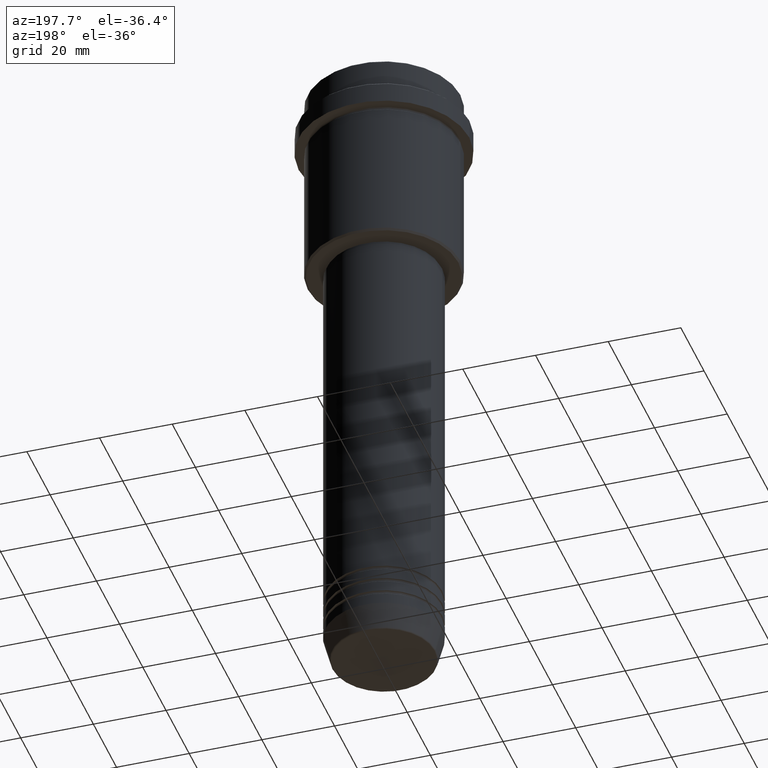
[diagram: clean part render]
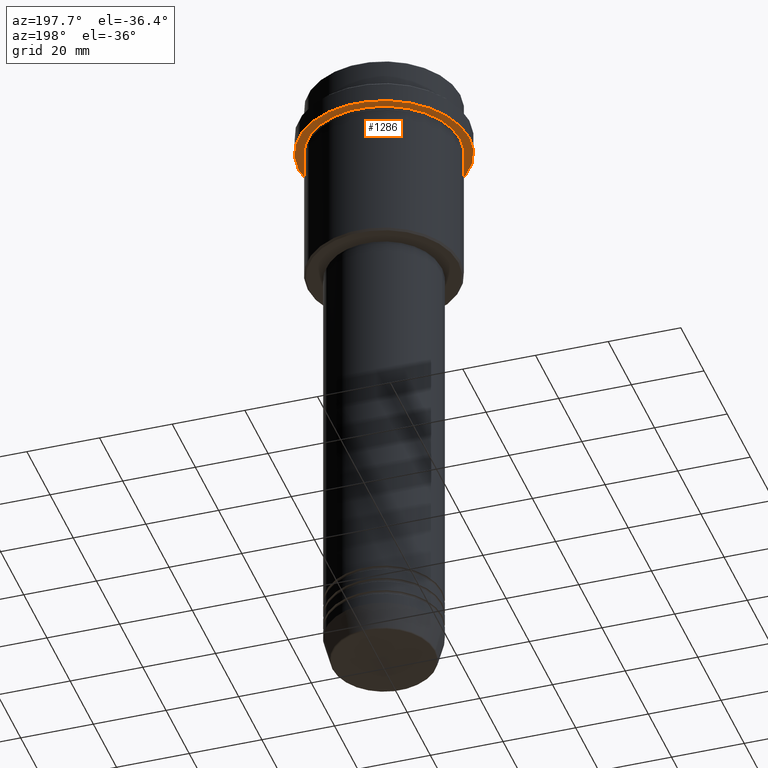
[diagram: same view with one face highlighted and labeled with its STEP entity id]
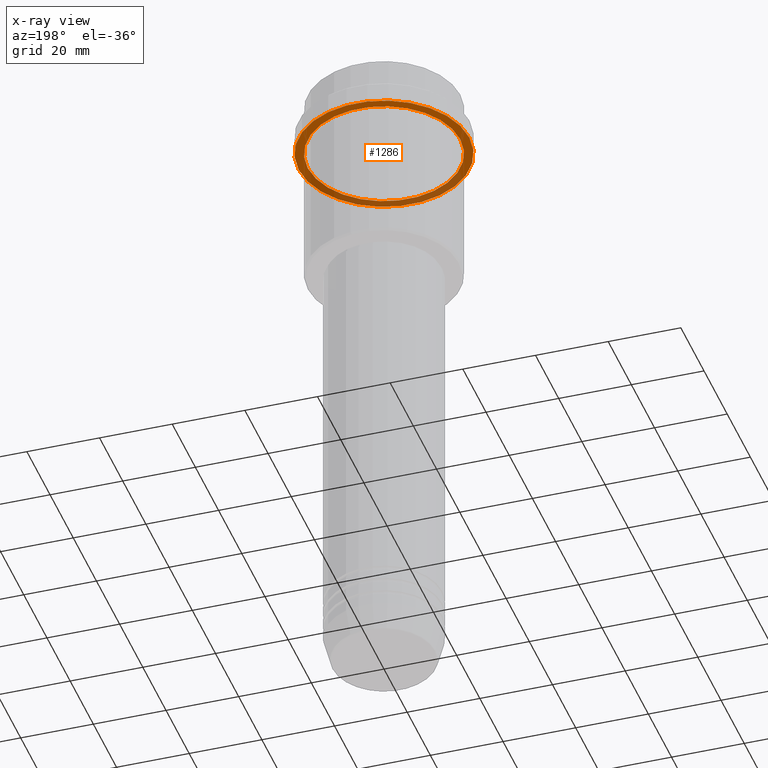
[diagram: x-ray of the same camera — body ghosted, the highlighted face saturated]
A machine part, auxiliary view. The second image highlights one B-rep face of the part: STEP entity #1286.
The next image is the same camera in x-ray: the body ghosted, the highlighted face saturated — about 36% of this face is hidden behind the body in this view.
In plain terms, the highlighted planar face has unit normal (0, 0, -1).
Its self-contained STEP definition (entity closure, byte-faithful):
#23 = DIRECTION ( 'NONE',  ( -1.000000000000000000, 0.000000000000000000, -0.000000000000000000 ) ) ;
#48 = CARTESIAN_POINT ( 'NONE',  ( 0.000000000000000000, 23.50000000000000355, -15.00000000000000178 ) ) ;
#77 = VERTEX_POINT ( 'NONE', #1100 ) ;
#110 = VERTEX_POINT ( 'NONE', #1204 ) ;
#118 = VERTEX_POINT ( 'NONE', #784 ) ;
#133 = EDGE_CURVE ( 'NONE', #110, #118, #428, .T. ) ;
#157 = ORIENTED_EDGE ( 'NONE', *, *, #133, .T. ) ;
#208 = EDGE_CURVE ( 'NONE', #1284, #77, #468, .T. ) ;
#210 = AXIS2_PLACEMENT_3D ( 'NONE', #612, #936, #708 ) ;
#212 = CARTESIAN_POINT ( 'NONE',  ( 0.000000000000000000, 0.000000000000000000, -15.00000000000000000 ) ) ;
#310 = EDGE_CURVE ( 'NONE', #118, #110, #424, .T. ) ;
#366 = DIRECTION ( 'NONE',  ( -0.000000000000000000, -0.000000000000000000, 1.000000000000000000 ) ) ;
#424 = CIRCLE ( 'NONE', #210, 20.99999999999999289 ) ;
#428 = CIRCLE ( 'NONE', #1210, 20.99999999999999289 ) ;
#468 = CIRCLE ( 'NONE', #1034, 23.50000000000000355 ) ;
#478 = FACE_OUTER_BOUND ( 'NONE', #639, .T. ) ;
#531 = DIRECTION ( 'NONE',  ( 1.000000000000000000, 0.000000000000000000, 0.000000000000000000 ) ) ;
#568 = DIRECTION ( 'NONE',  ( -1.000000000000000000, 0.000000000000000000, 0.000000000000000000 ) ) ;
#581 = DIRECTION ( 'NONE',  ( 0.000000000000000000, 0.000000000000000000, -1.000000000000000000 ) ) ;
#602 = CARTESIAN_POINT ( 'NONE',  ( -23.50000000000000711, 2.877919977996281109E-15, -15.00000000000000000 ) ) ;
#612 = CARTESIAN_POINT ( 'NONE',  ( 0.000000000000000000, 0.000000000000000000, -15.00000000000000178 ) ) ;
#639 = EDGE_LOOP ( 'NONE', ( #847, #1048 ) ) ;
#708 = DIRECTION ( 'NONE',  ( -1.000000000000000000, 0.000000000000000000, 0.000000000000000000 ) ) ;
#758 = DIRECTION ( 'NONE',  ( -0.000000000000000000, -0.000000000000000000, 1.000000000000000000 ) ) ;
#784 = CARTESIAN_POINT ( 'NONE',  ( -20.99999999999999289, 0.000000000000000000, -15.00000000000000178 ) ) ;
#800 = EDGE_LOOP ( 'NONE', ( #1176, #157 ) ) ;
#804 = CARTESIAN_POINT ( 'NONE',  ( 0.000000000000000000, 0.000000000000000000, -15.00000000000000178 ) ) ;
#841 = AXIS2_PLACEMENT_3D ( 'NONE', #212, #758, #1414 ) ;
#847 = ORIENTED_EDGE ( 'NONE', *, *, #1136, .F. ) ;
#862 = AXIS2_PLACEMENT_3D ( 'NONE', #48, #581, #23 ) ;
#884 = CIRCLE ( 'NONE', #841, 23.50000000000000355 ) ;
#918 = PLANE ( 'NONE',  #862 ) ;
#936 = DIRECTION ( 'NONE',  ( -0.000000000000000000, -0.000000000000000000, 1.000000000000000000 ) ) ;
#956 = DIRECTION ( 'NONE',  ( -0.000000000000000000, -0.000000000000000000, 1.000000000000000000 ) ) ;
#1030 = FACE_BOUND ( 'NONE', #800, .T. ) ;
#1034 = AXIS2_PLACEMENT_3D ( 'NONE', #1211, #956, #531 ) ;
#1048 = ORIENTED_EDGE ( 'NONE', *, *, #208, .F. ) ;
#1100 = CARTESIAN_POINT ( 'NONE',  ( 23.50000000000000355, 0.000000000000000000, -15.00000000000000000 ) ) ;
#1136 = EDGE_CURVE ( 'NONE', #77, #1284, #884, .T. ) ;
#1176 = ORIENTED_EDGE ( 'NONE', *, *, #310, .T. ) ;
#1204 = CARTESIAN_POINT ( 'NONE',  ( 20.99999999999999289, 2.571758278209440872E-15, -15.00000000000000178 ) ) ;
#1210 = AXIS2_PLACEMENT_3D ( 'NONE', #804, #366, #568 ) ;
#1211 = CARTESIAN_POINT ( 'NONE',  ( 0.000000000000000000, 0.000000000000000000, -15.00000000000000000 ) ) ;
#1284 = VERTEX_POINT ( 'NONE', #602 ) ;
#1286 = ADVANCED_FACE ( 'NONE', ( #1030, #478 ), #918, .T. ) ;
#1414 = DIRECTION ( 'NONE',  ( 1.000000000000000000, 0.000000000000000000, 0.000000000000000000 ) ) ;